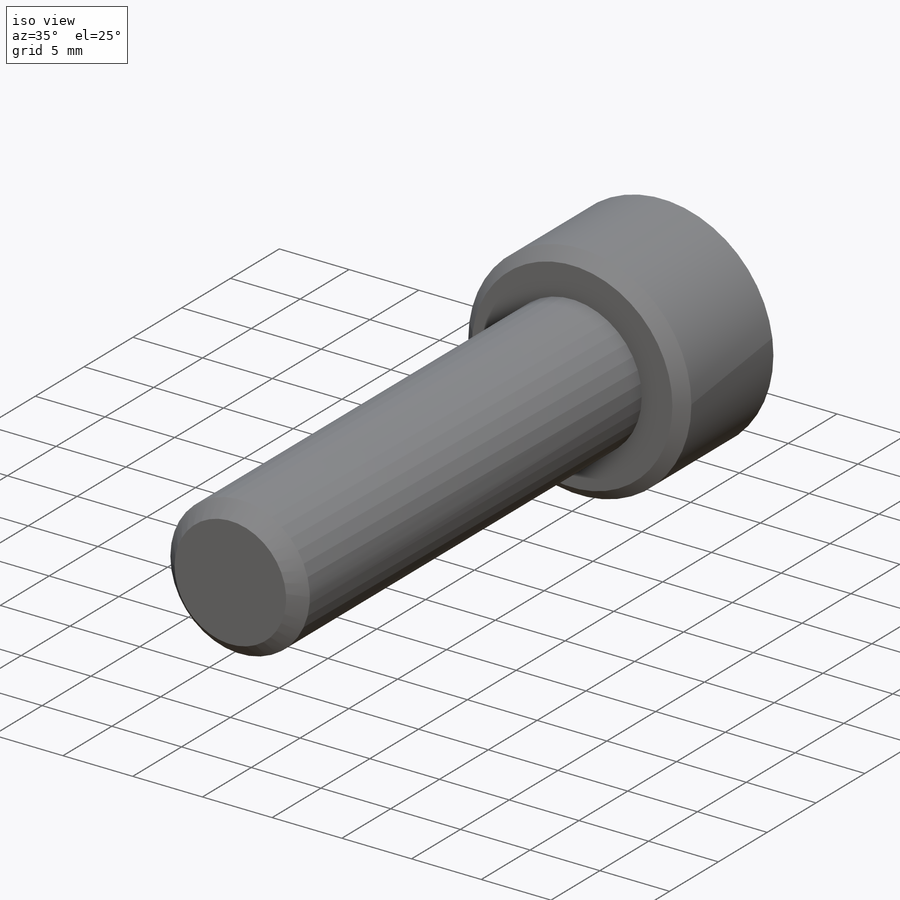
[diagram: iso view]
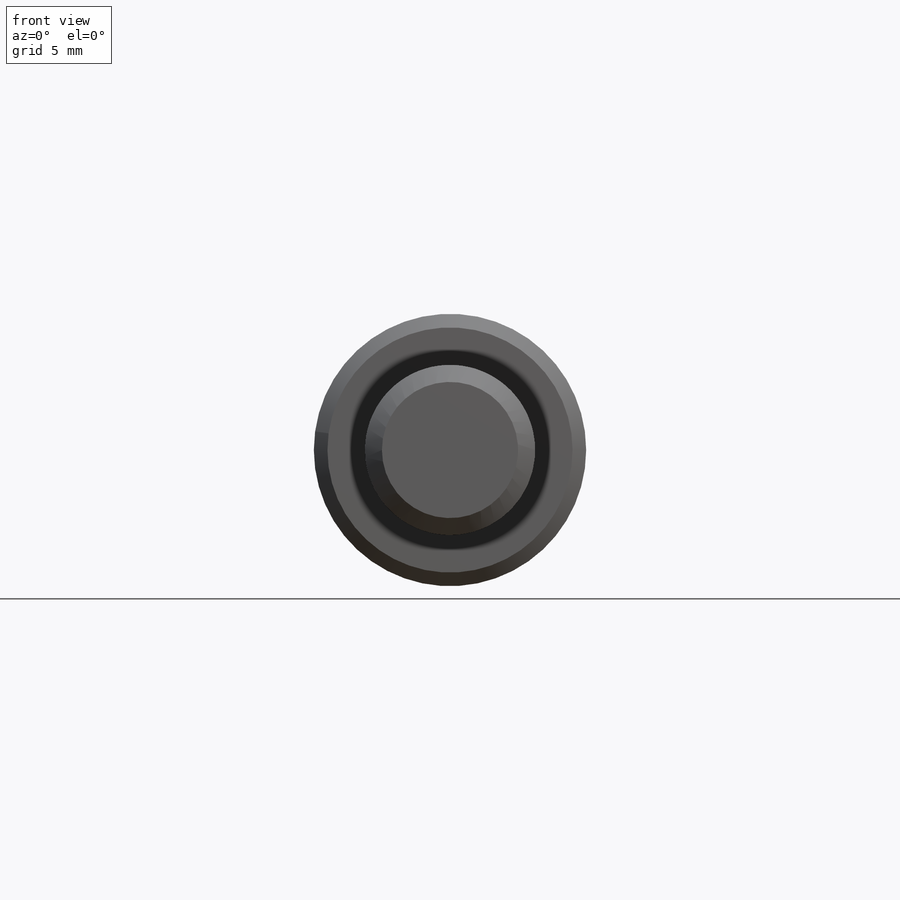
[diagram: front view]
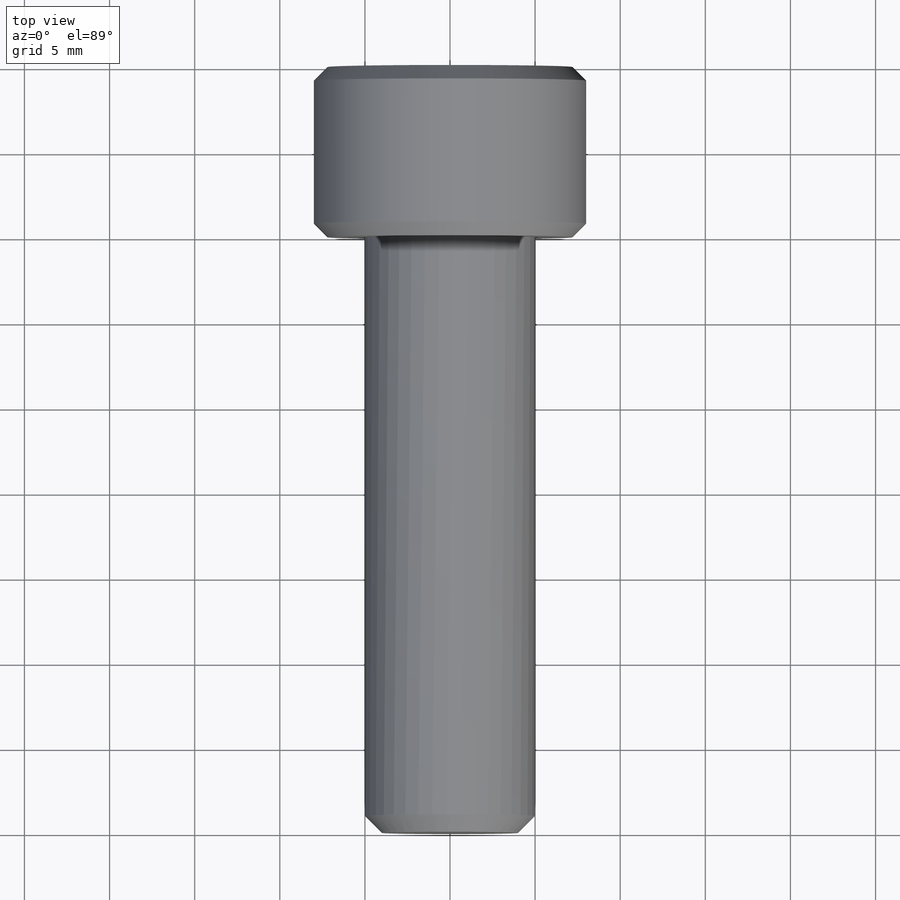
[diagram: top view]
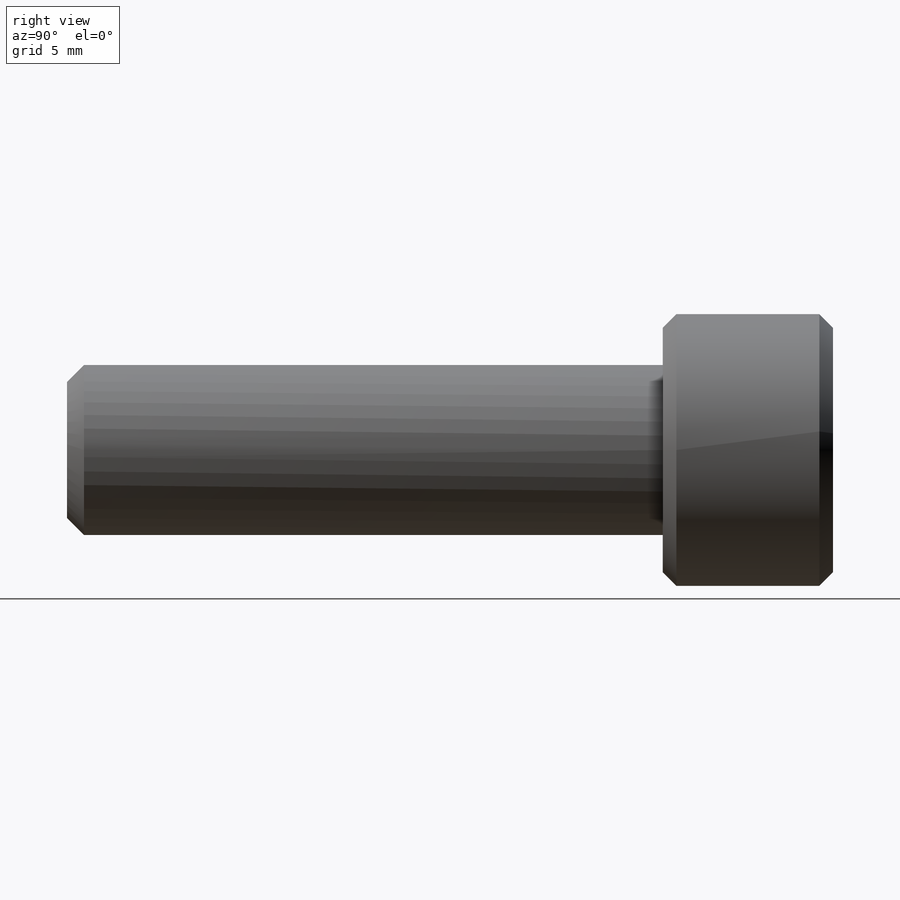
[diagram: right view]
SOLIDWORKS PART (.sldprt)
format: sldprt  version: not decoded by parser v0  size: 213,504 bytes
history: native  units: mm
features: sketch x4, extrude x2, cut_extrude x2, chamfer x2, material x1, thread x1 (+14 scaffold rows collapsed)
feature tree (26):
  scaffold x14  (default folders/planes/origin — collapsed)
  material  "18-8 SSTL"
  sketch  "Sketch1"  dims[OD=10.0mm]
  extrude  "Extrude1"  [1 undecoded]
  thread  "Cosmetic Thread1"  Diameter=9mm screw length=35mm  [1 undecoded]
  sketch  "Sketch6"  dims[head dia=16.0mm]
  extrude  "Extrude2"  Depth=10mm head depth=10mm
  sketch  "Sketch7"  dims[hex dia=8.0mm]
  cut_extrude  "Cut-Extrude1"  Depth=6mm
  sketch  "Sketch8"
  cut_extrude  "Cut-Extrude2"  [1 undecoded]
  chamfer  "Chamfer1"  Distance=0.8mm Angle=45deg
  chamfer  "Chamfer2"  Distance=1mm Angle=45deg
decode coverage: 8 of 11 modeling features carry decoded parameters
note: 3 parameter values undecoded
note: suppression state not decoded; provenance and decode notes live in map.json
